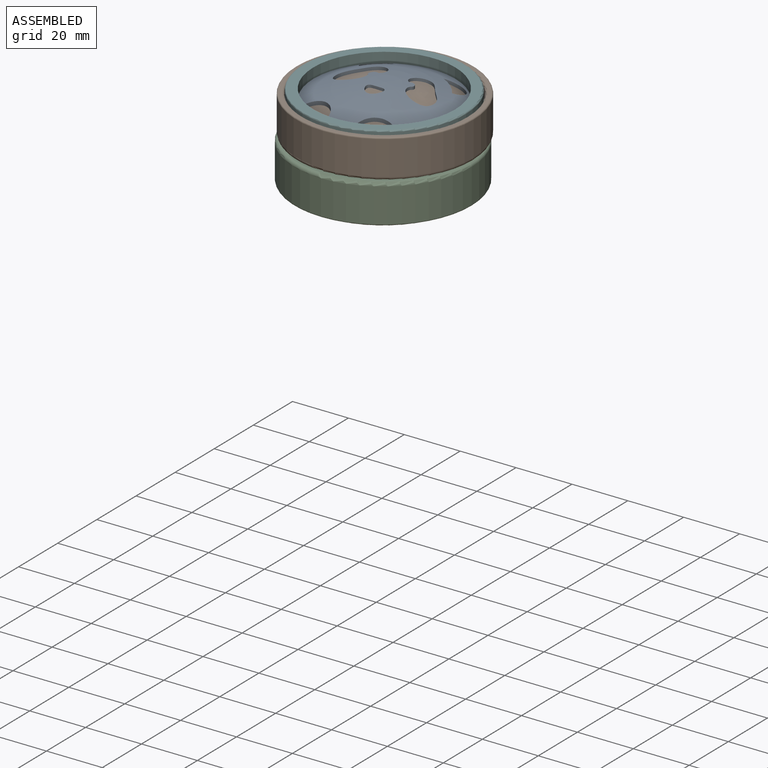
[diagram: assembled view]
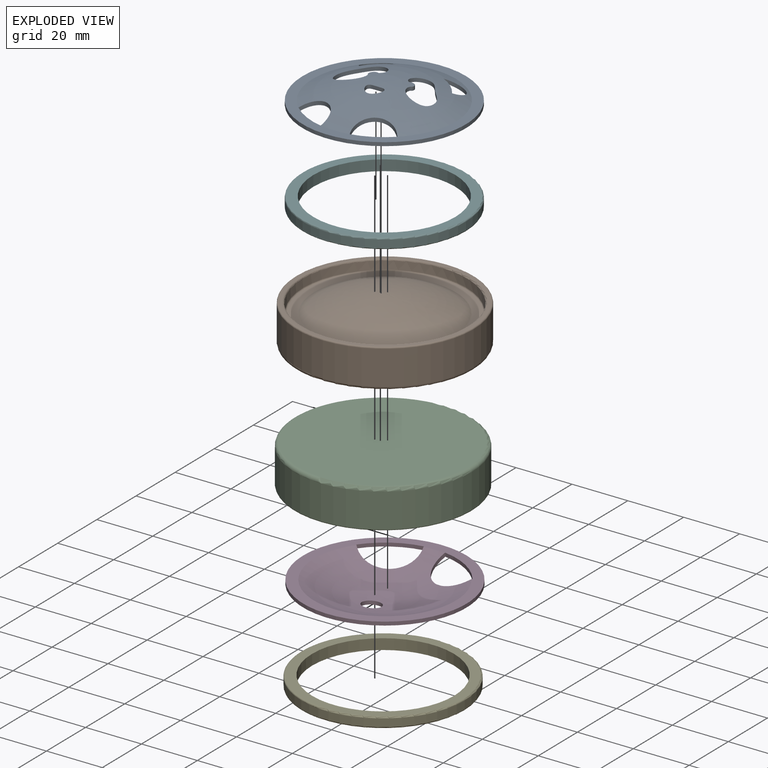
[diagram: exploded view]
GUIDED TOUR — MATED ASSEMBLY (Onshape document 9b1ee9b010bed136732c82c5, AutoMate assembly 9b1ee9b010bed136732c82c5_4f5843e7cd44351350c2d083_6b12b4061ba64d75ab5cf520_default)

This assembly has 6 components, labeled P0..P5 below (a component is one placed occurrence of a part; the same part can appear more than once), held together by 5 mates. A mate is a constraint between two components; its type names the relative motion it leaves free:
  PARALLEL — keeps the two listed directions parallel,
  PLANAR — leaves sliding in the plane through the listed point (normal = the listed direction) and rotation about that normal free.
Axis/direction vectors are unit vectors and 'through' points are millimeter coordinates, both in the assembly's world frame.

MATES
  1. PARALLEL "Parallel 3": P4 <-> P3, direction (0.000, 0.000, 1.000) through (57.00, 10.66, -30.36) mm
  2. PARALLEL "Parallel 1": P2 <-> P1, direction (0.000, 0.000, 1.000) through (57.00, 10.66, -18.93) mm
  3. PARALLEL "Parallel 2": P3 <-> P2, direction (0.000, 0.000, 1.000) through (57.46, 10.93, -28.53) mm
  4. PARALLEL "Parallel 4": P5 <-> P0, direction (0.000, 0.000, -1.000) through (57.46, 10.64, -6.94) mm
  5. PLANAR "Planar 1": P0 <-> P1, direction (0.000, 0.000, -1.000) through (57.46, 10.93, -8.21) mm

ASSEMBLY ORDER
  1. P0 — the base component [order heuristic]
  2. P5 — core [order heuristic]
  3. P1 — core [order heuristic]
  4. P2 — core [order heuristic]
  5. P3 — core [order heuristic]
  6. P4 [order verified]
Order-tag legend:
  [order verified] — this step's position reverses a verified removal order: the component was checked to insert without passing through the ones already placed.
  [order heuristic] — the first 5 components form the assembly's core: parts whose collision-free extraction could not be verified, listed in mate-graph order.

Of the 6 components, 0 carry the full construction recipe — the FeatureScript program that regenerates the part's solid from scratch; the rest are supplied as boundary geometry only.
Each toured component is shown spotlighted twice — in the assembled view, then in the exploded view, where a leader line traces a displaced component back to its assembled socket (saturated green if recipe-attached, orange if geometry-only; every other component desaturated gray) — followed by its recipe or geometry summary and the mates that hold it.
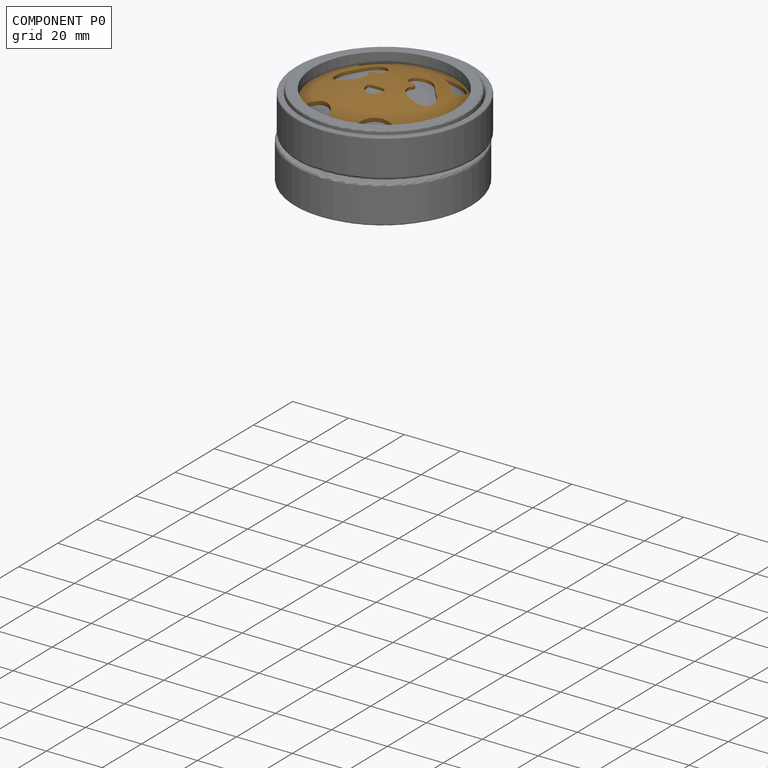
[diagram: component P0 — assembled]
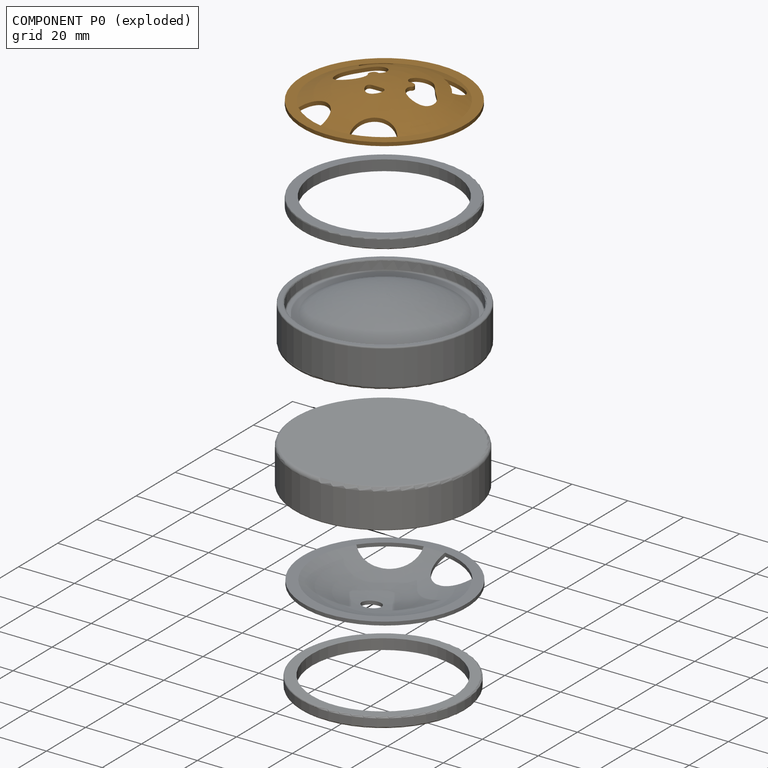
[diagram: component P0 — exploded]
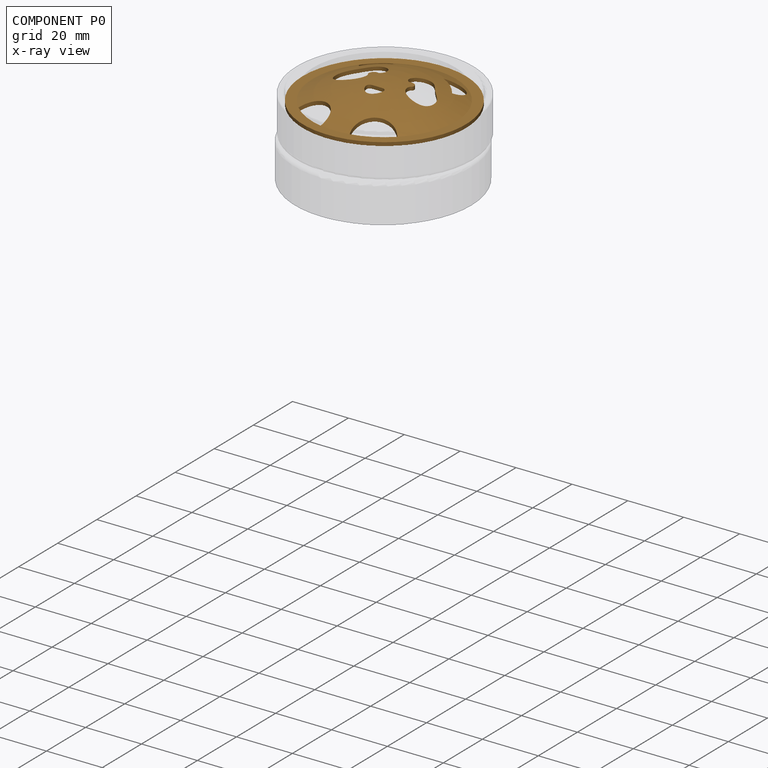
[diagram: component P0 — x-ray view]
COMPONENT P0 — geometry summary (no construction recipe available for this part):
  bounding box: 58.4 x 58.4 x 7.2 mm
  B-rep topology: 1 solid, 20 faces, 122 edges
  volume: 2902 mm^3 (12% of its bounding box)
  symmetry: mirror-symmetric across its x mid-plane
Held by: PARALLEL mate "Parallel 4" to P5; PLANAR mate "Planar 1" to P1.
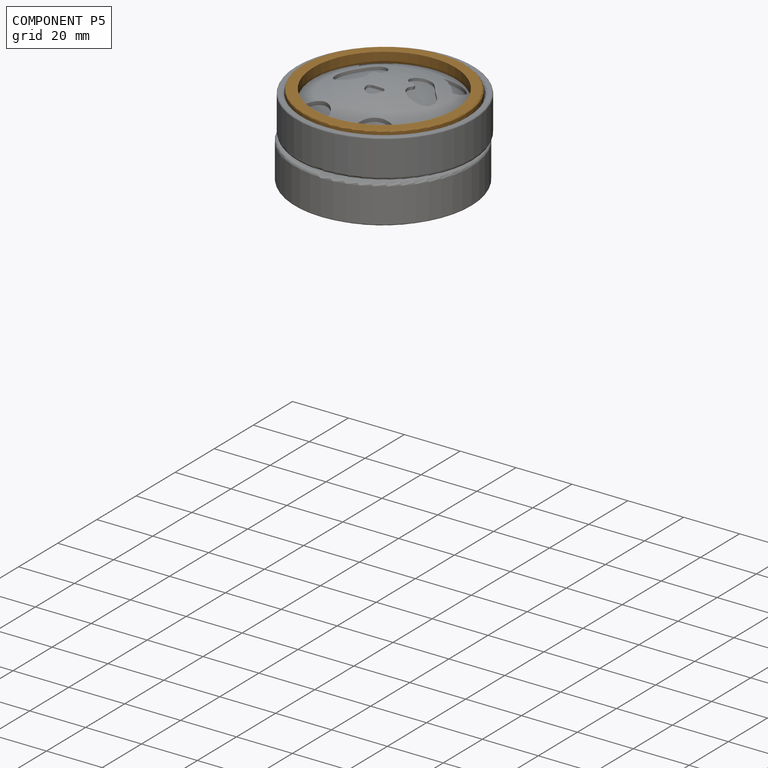
[diagram: component P5 — assembled]
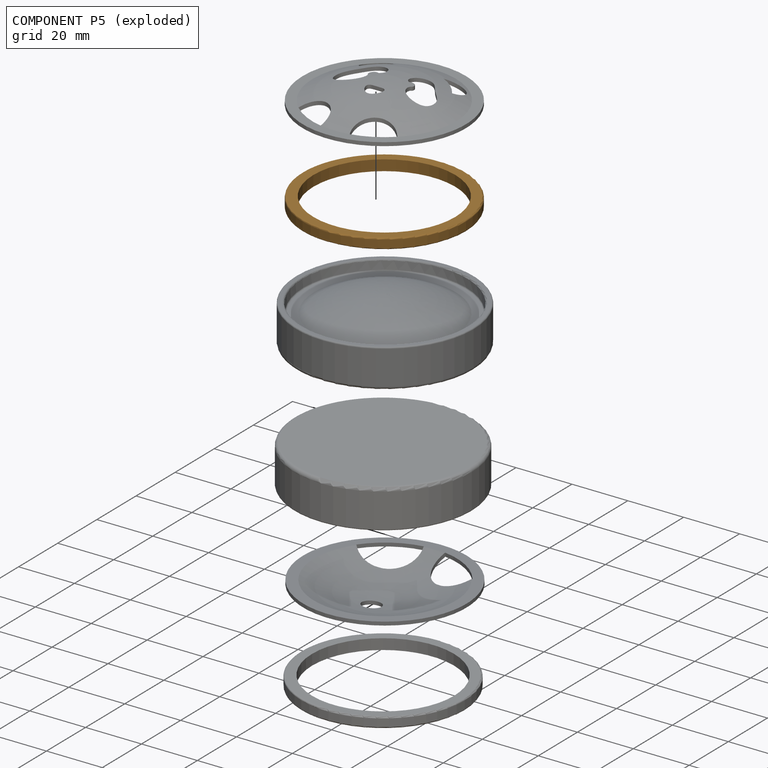
[diagram: component P5 — exploded]
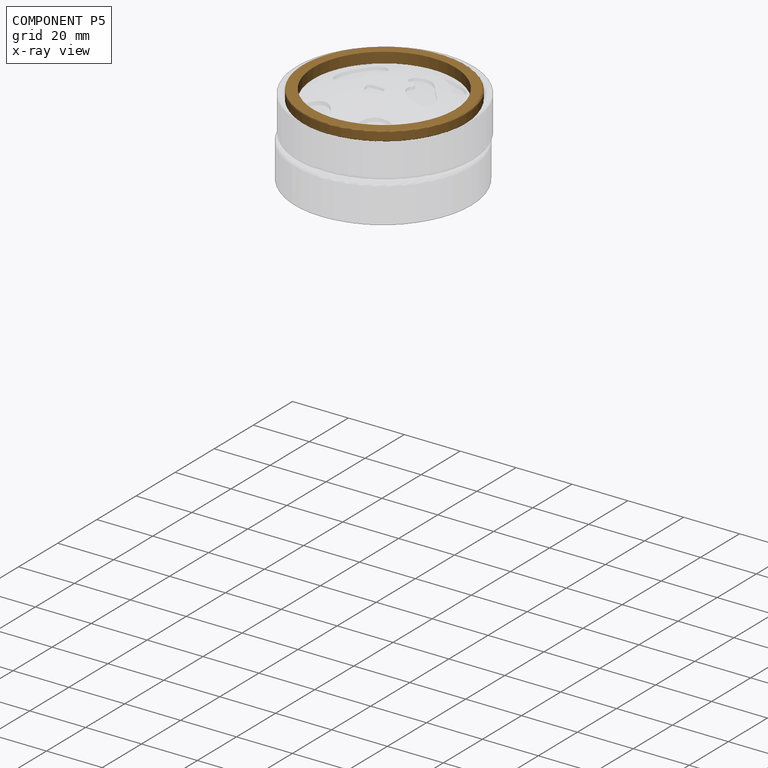
[diagram: component P5 — x-ray view]
COMPONENT P5 — geometry summary (no construction recipe available for this part):
  bounding box: 63.2 x 63.2 x 3.8 mm
  B-rep topology: 1 solid, 6 faces, 20 edges
  volume: 2470 mm^3 (16% of its bounding box)
  symmetry: 2-fold rotationally symmetric about the x axis; 2-fold rotationally symmetric about the y axis; revolution-symmetric about the z axis through its bounding-box center; mirror-symmetric across its x mid-plane, y mid-plane, z mid-plane
Held by: PARALLEL mate "Parallel 4" to P0.
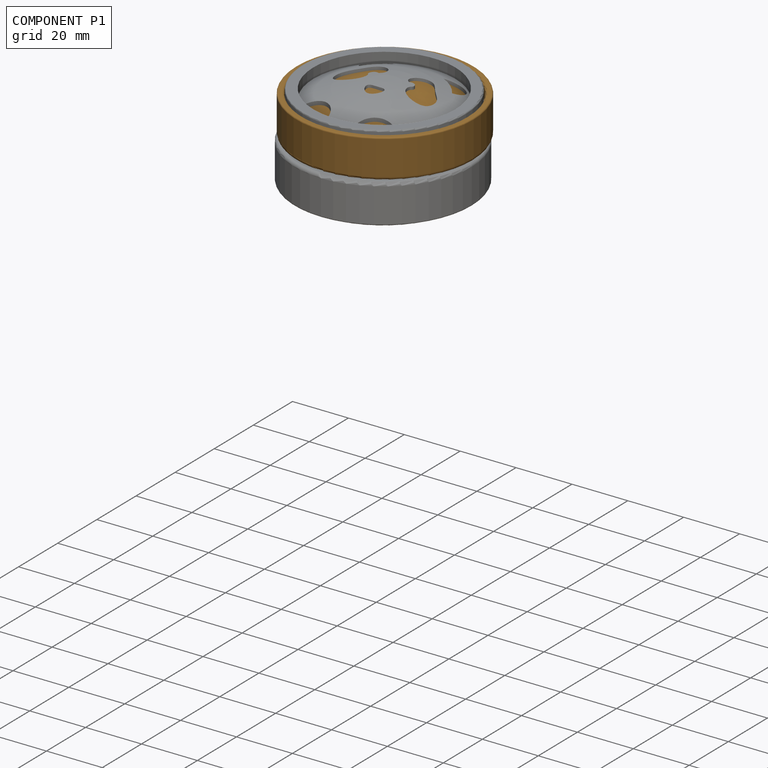
[diagram: component P1 — assembled]
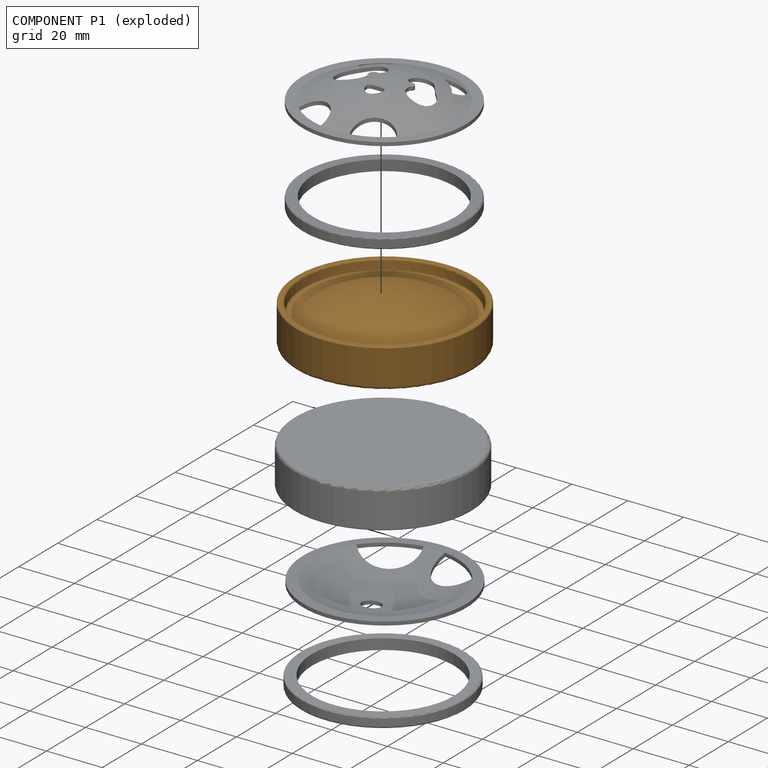
[diagram: component P1 — exploded]
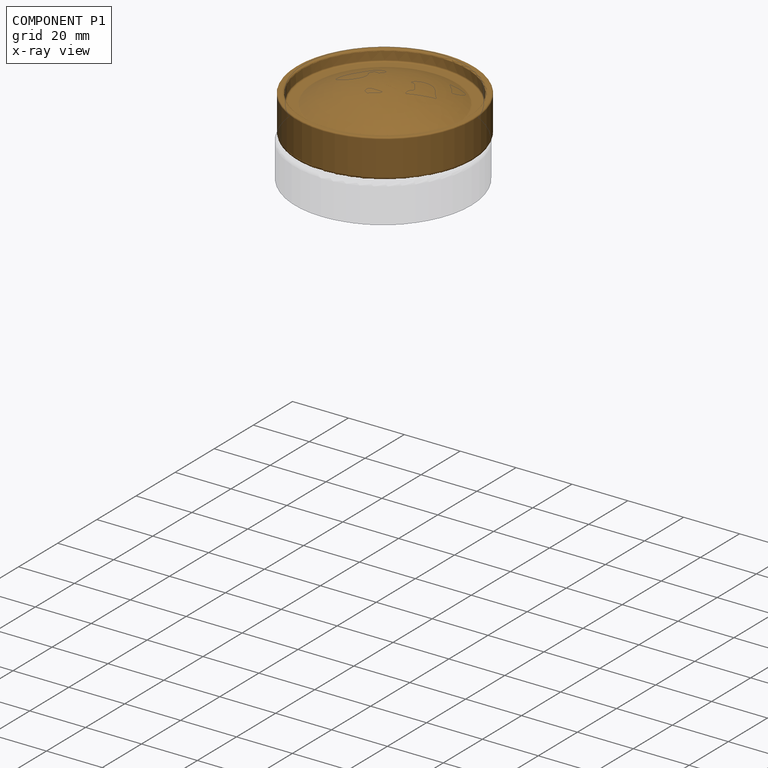
[diagram: component P1 — x-ray view]
COMPONENT P1 — geometry summary (no construction recipe available for this part):
  bounding box: 68.7 x 68.7 x 16.5 mm
  B-rep topology: 1 solid, 11 faces, 43 edges
  volume: 40270 mm^3 (52% of its bounding box)
  symmetry: revolution-symmetric about the z axis through its bounding-box center; mirror-symmetric across its x mid-plane, y mid-plane
Held by: PARALLEL mate "Parallel 1" to P2; PLANAR mate "Planar 1" to P0.
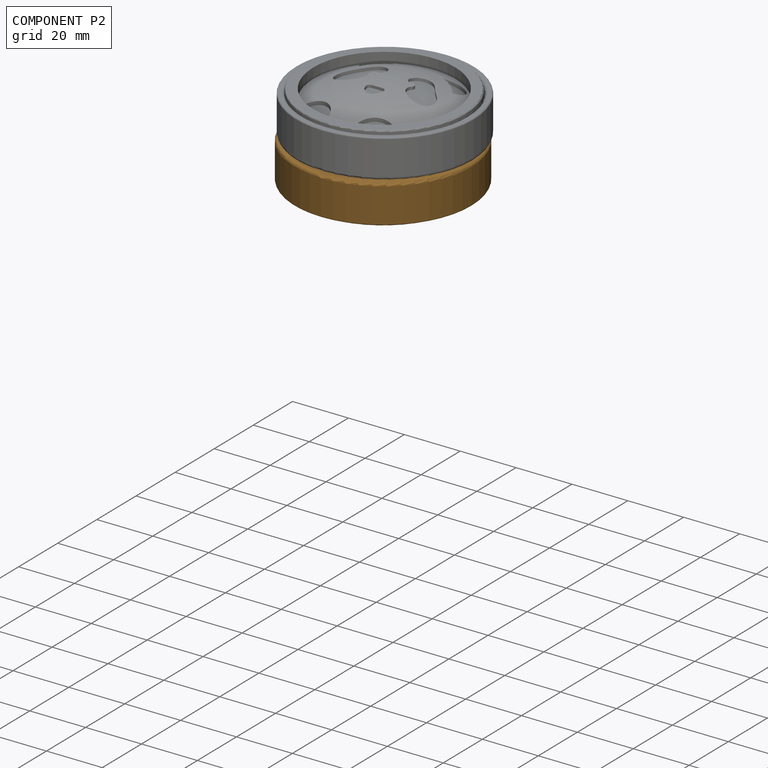
[diagram: component P2 — assembled]
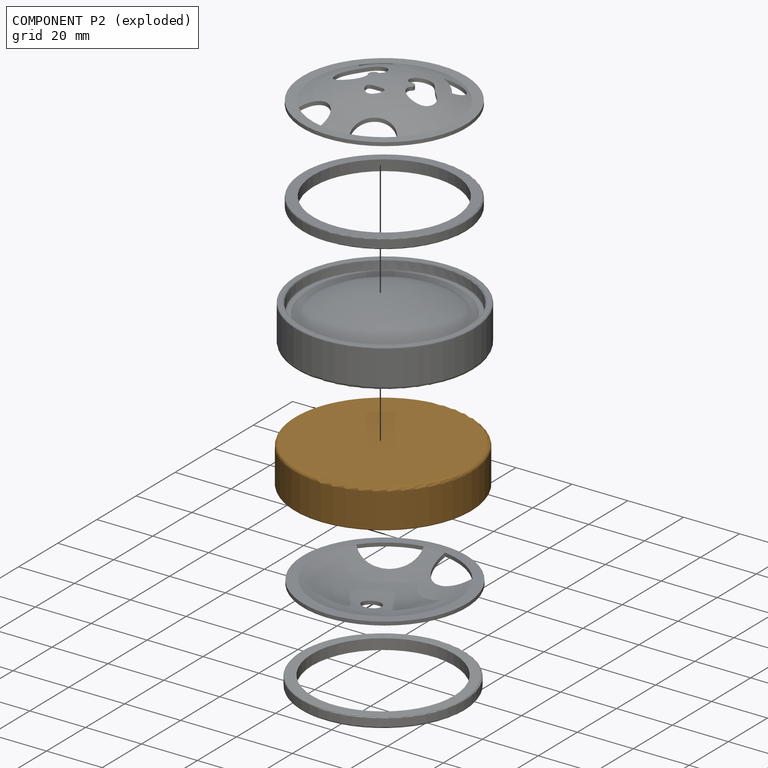
[diagram: component P2 — exploded]
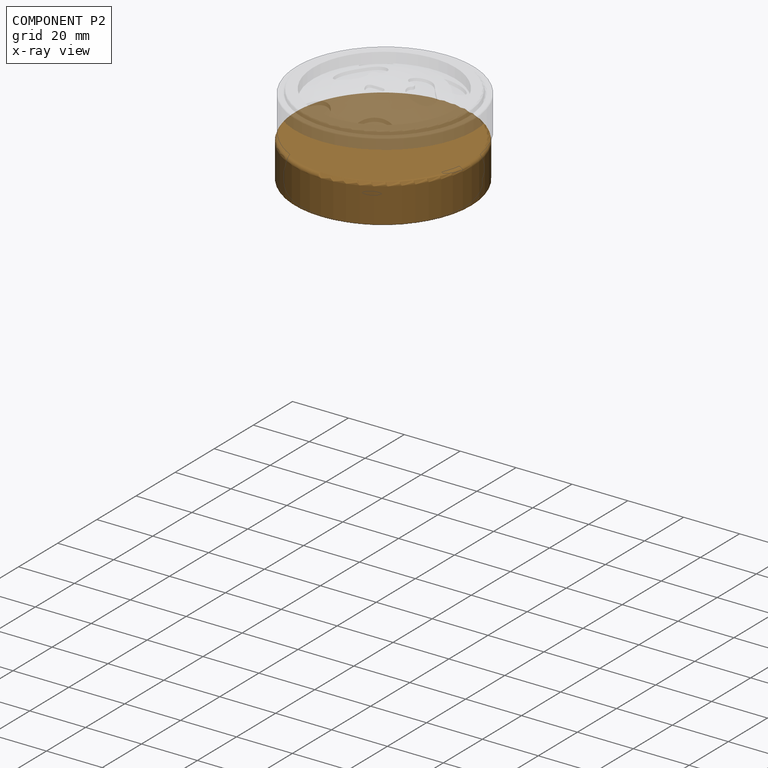
[diagram: component P2 — x-ray view]
COMPONENT P2 — geometry summary (no construction recipe available for this part):
  bounding box: 68.7 x 68.7 x 16.5 mm
  B-rep topology: 1 solid, 11 faces, 43 edges
  volume: 40270 mm^3 (52% of its bounding box)
  symmetry: revolution-symmetric about the z axis through its bounding-box center; mirror-symmetric across its x mid-plane, y mid-plane
Held by: PARALLEL mate "Parallel 1" to P1; PARALLEL mate "Parallel 2" to P3.
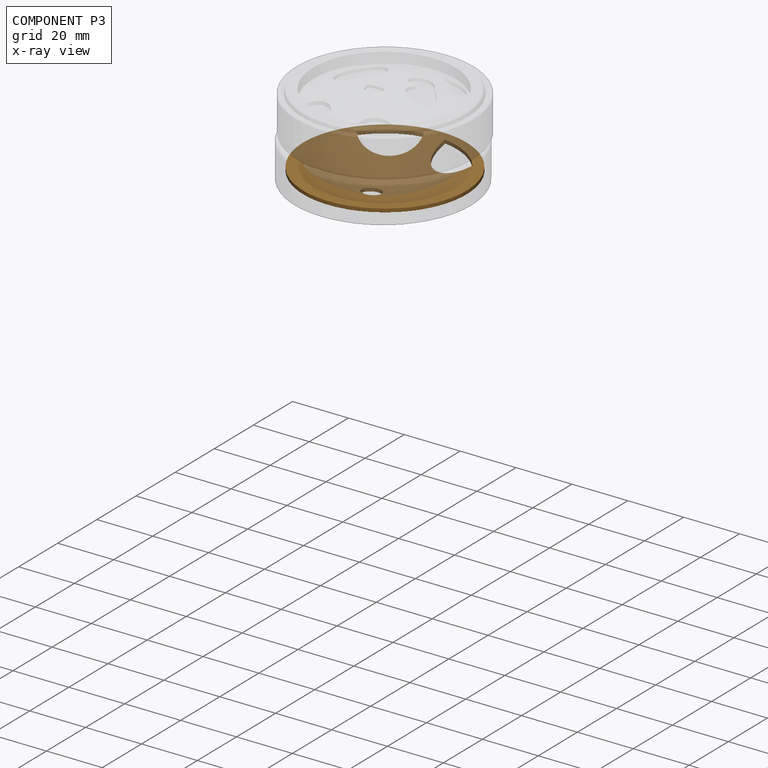
[diagram: component P3 — x-ray view]
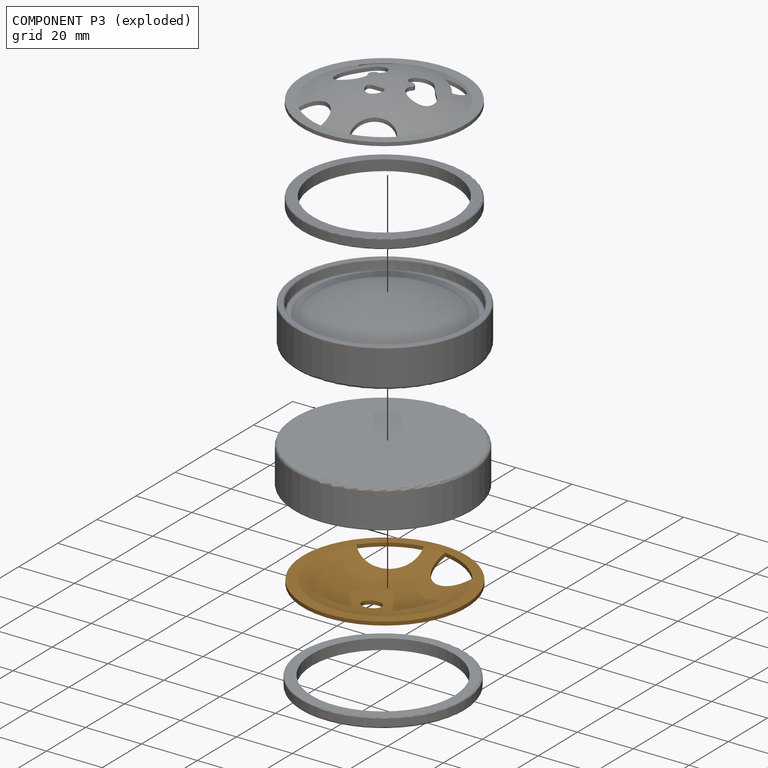
[diagram: component P3 — exploded]
COMPONENT P3 — geometry summary (no construction recipe available for this part):
  bounding box: 58.4 x 58.4 x 7.2 mm
  B-rep topology: 1 solid, 10 faces, 64 edges
  volume: 3100 mm^3 (13% of its bounding box)
  symmetry: mirror-symmetric across its x mid-plane
Held by: PARALLEL mate "Parallel 3" to P4; PARALLEL mate "Parallel 2" to P2.
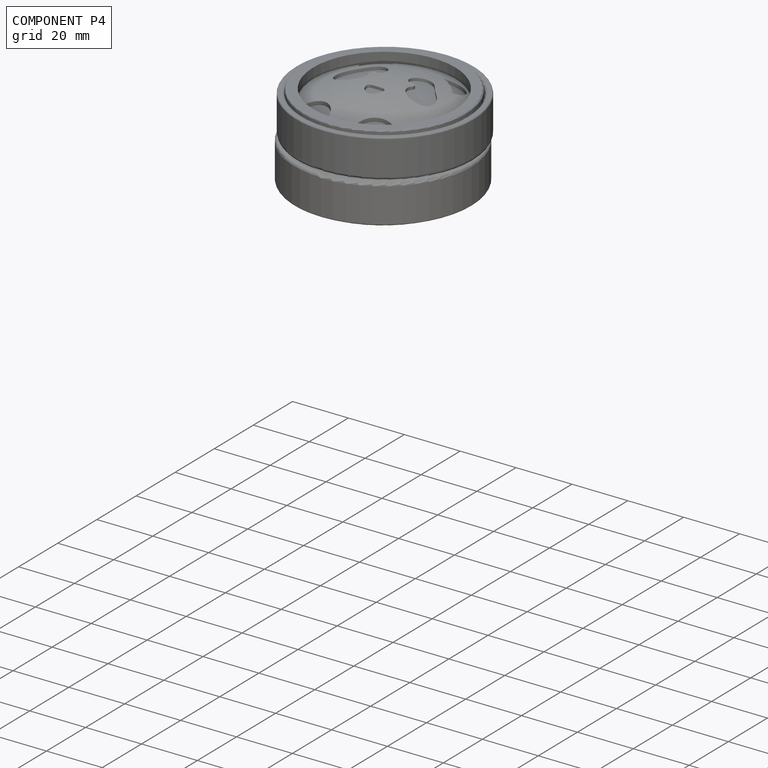
[diagram: component P4 — assembled]
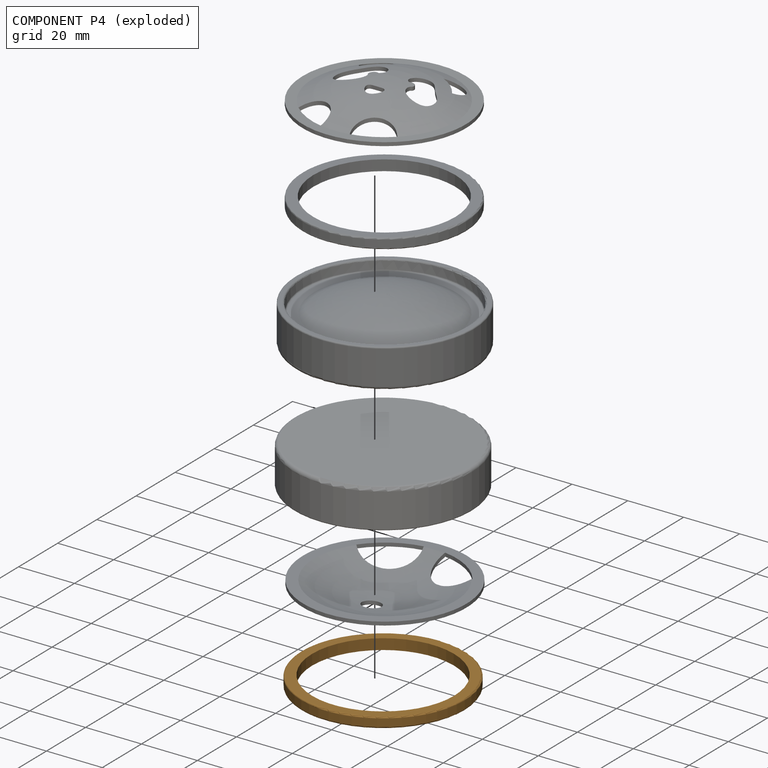
[diagram: component P4 — exploded]
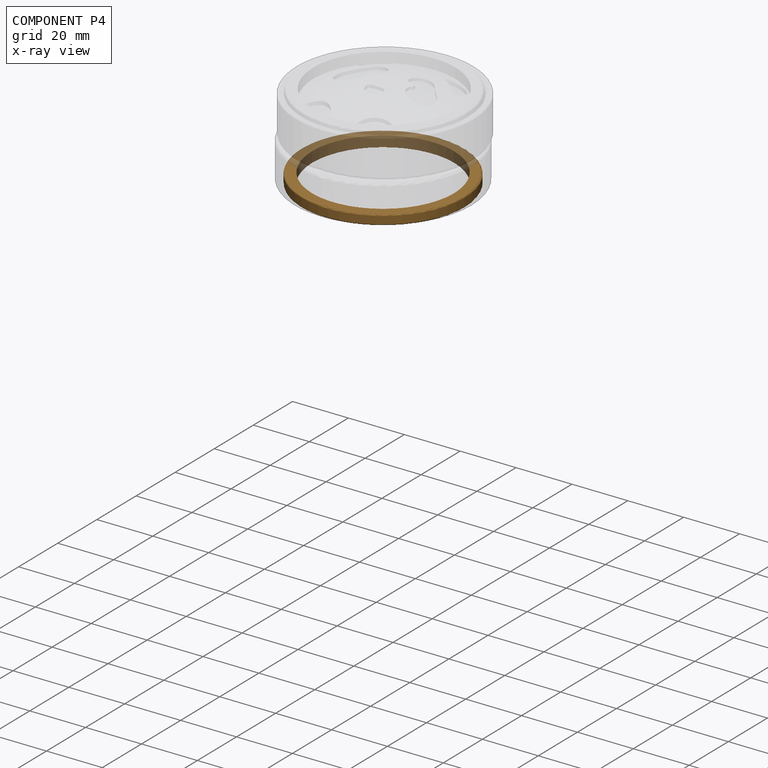
[diagram: component P4 — x-ray view]
COMPONENT P4 — geometry summary (no construction recipe available for this part):
  bounding box: 63.2 x 63.2 x 3.8 mm
  B-rep topology: 1 solid, 6 faces, 20 edges
  volume: 2470 mm^3 (16% of its bounding box)
  symmetry: 2-fold rotationally symmetric about the x axis; 2-fold rotationally symmetric about the y axis; revolution-symmetric about the z axis through its bounding-box center; mirror-symmetric across its x mid-plane, y mid-plane, z mid-plane
Held by: PARALLEL mate "Parallel 3" to P3.
PROVENANCE & LICENSES
Assembly (occurrences, transforms, mates, per-part STEP geometry): AutoMate dataset, Zenodo record 7776208, CC0.
Construction recipes: CADFS (HuggingFace VladPyatov/CADFS, CC-BY-4.0, layered over the ABC dataset), FeatureScript reconstruction programs keyed by ABC model id.
Join: ABC meta listings map ABC model id -> Onshape documentId; within a shared document, parts are matched by geometric signature (bounding-box dims + volume at 0.1% relative tolerance, exact B-rep face/solid counts).
Verification: no recipe attachments in this assembly (6 components, all geometry-only).
Renders: orthographic iso camera (az 35 / el 25); the floor grid conveys scale (grid pitch printed in each image; no ruler). In the exploded view each component is displaced by its stored offset vector: the offsets alone carry the explosion direction (mate normal/axis signs are not orientation cues and do not encode it), and separation distances are assigned per mate-chain, not proportionally to assembly-order depth.
